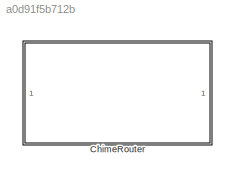
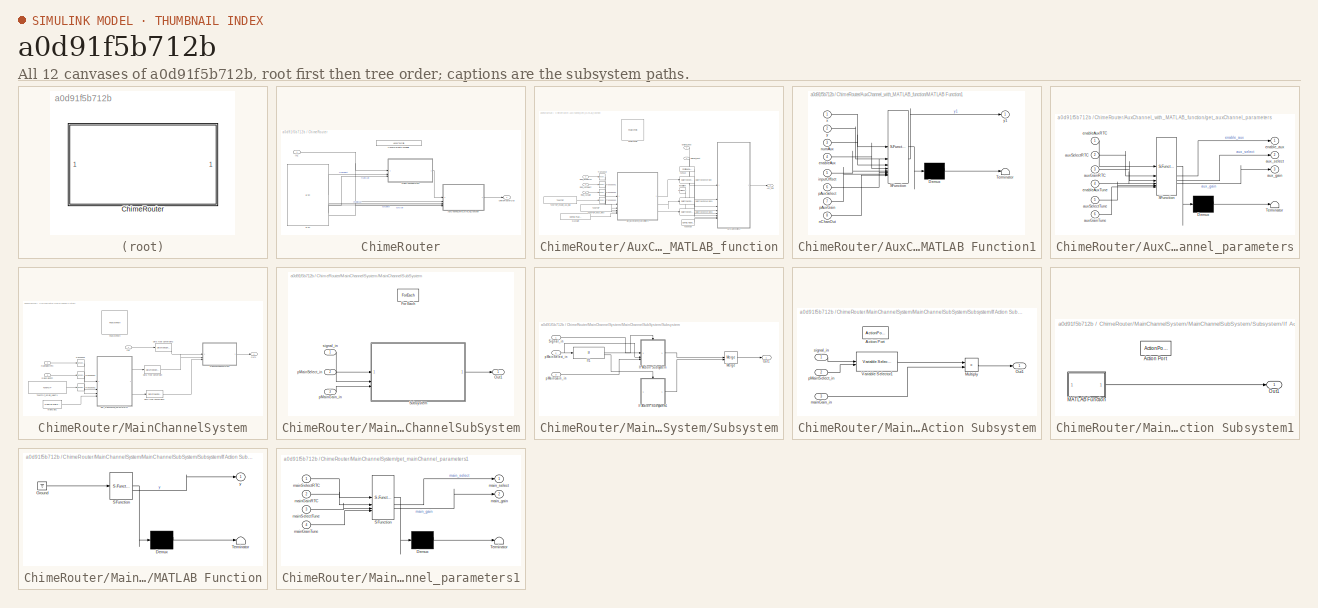
[diagram: thumbnail index - all 12 canvases of the model, root first then tree order]
MODEL slx_a0d91f5b712b
KIND library
CONFIG AbsTol = auto
CONFIG EnableMultiTasking = off
CONFIG FixedStep = auto
CONFIG MaxStep = auto
CONFIG MinStep = auto
CONFIG RelTol = 1e-3
CONFIG SampleTimeConstraint = Unconstrained
CONFIG SolverName = VariableStepAuto
CONFIG StartTime = 0.0
CONFIG StopTime = 10.0
BLOCK [SubSystem] ChimeRouter
BLOCK [SubSystem] ChimeRouter/AuxChannel_with_MATLAB_function
BLOCK [Outport] ChimeRouter/AuxChannel_with_MATLAB_function/Aux_Out1
  PortDimensions = [Config.FrameSize Config.NChanOut]
  VarSizeSig = No
  VectorParamsAs1DForOutWhenUnconnected = off
BLOCK [DataTypeConversion] ChimeRouter/AuxChannel_with_MATLAB_function/Data Type Conversion
  OutDataTypeStr = int32
  RndMeth = Floor
  SaturateOnIntegerOverflow = off
BLOCK [DataTypeConversion] ChimeRouter/AuxChannel_with_MATLAB_function/Data Type Conversion1
  OutDataTypeStr = int32
  RndMeth = Floor
  SaturateOnIntegerOverflow = off
BLOCK [DataTypeConversion] ChimeRouter/AuxChannel_with_MATLAB_function/Data Type Conversion2
  OutDataTypeStr = single
  RndMeth = Floor
  SaturateOnIntegerOverflow = off
BLOCK [Reference] ChimeRouter/AuxChannel_with_MATLAB_function/FeaturePath  REF=FeaturePath/FeaturePath
  SourceBlock = FeaturePath/FeaturePath
  SourceProductName = Bose Talaria
  SourceType = Talaria Feature Path
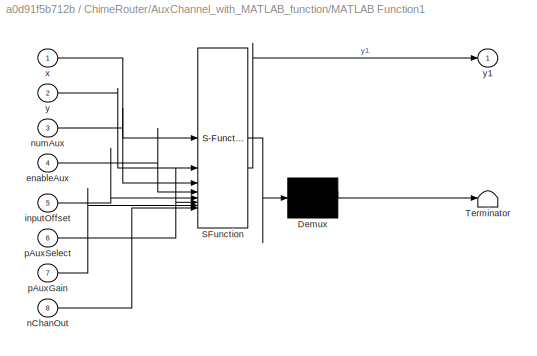
BLOCK [SubSystem] ChimeRouter/AuxChannel_with_MATLAB_function/MATLAB Function1
  ErrorFcn = Stateflow.Translate.translate
  PermitHierarchicalResolution = ExplicitOnly
  SFBlockType = MATLAB Function
  TreatAsAtomicUnit = on
BLOCK [Demux] ChimeRouter/AuxChannel_with_MATLAB_function/MATLAB Function1/ Demux 
  Outputs = 1
BLOCK [S-Function] ChimeRouter/AuxChannel_with_MATLAB_function/MATLAB Function1/ SFunction 
  EnableBusSupport = off
  FunctionName = sf_sfun
  PortCounts = [8 2]
  SFcnIsStateOwnerBlock = off
  SFunctionDeploymentMode = off
  Tag = Stateflow S-Function 1
BLOCK [Terminator] ChimeRouter/AuxChannel_with_MATLAB_function/MATLAB Function1/ Terminator 
BLOCK [Inport] ChimeRouter/AuxChannel_with_MATLAB_function/MATLAB Function1/enableAux
  Port = 4
BLOCK [Inport] ChimeRouter/AuxChannel_with_MATLAB_function/MATLAB Function1/inputOffset
  Port = 5
BLOCK [Inport] ChimeRouter/AuxChannel_with_MATLAB_function/MATLAB Function1/nChanOut
  Port = 8
BLOCK [Inport] ChimeRouter/AuxChannel_with_MATLAB_function/MATLAB Function1/numAux
  Port = 3
BLOCK [Inport] ChimeRouter/AuxChannel_with_MATLAB_function/MATLAB Function1/pAuxGain
  Port = 7
BLOCK [Inport] ChimeRouter/AuxChannel_with_MATLAB_function/MATLAB Function1/pAuxSelect
  Port = 6
BLOCK [Inport] ChimeRouter/AuxChannel_with_MATLAB_function/MATLAB Function1/x
BLOCK [Inport] ChimeRouter/AuxChannel_with_MATLAB_function/MATLAB Function1/y
  Port = 2
BLOCK [Outport] ChimeRouter/AuxChannel_with_MATLAB_function/MATLAB Function1/y1
  VectorParamsAs1DForOutWhenUnconnected = off
BLOCK [Inport] ChimeRouter/AuxChannel_with_MATLAB_function/MainOut_Input
  PortDimensions = [Config.FrameSize Config.NChanOut]
  VarSizeSig = No
BLOCK [Inport] ChimeRouter/AuxChannel_with_MATLAB_function/Original_Input
  Port = 2
BLOCK [Inport] ChimeRouter/AuxChannel_with_MATLAB_function/REQ_AuxGain
  Port = 5
BLOCK [Inport] ChimeRouter/AuxChannel_with_MATLAB_function/REQ_AuxSelect
  Port = 4
BLOCK [Inport] ChimeRouter/AuxChannel_with_MATLAB_function/REQ_EnableAux
  Port = 3
BLOCK [Math] ChimeRouter/AuxChannel_with_MATLAB_function/Transpose
  Operator = transpose
  SignedPower = on
BLOCK [Math] ChimeRouter/AuxChannel_with_MATLAB_function/Transpose1
  Operator = transpose
  SignedPower = on
BLOCK [Math] ChimeRouter/AuxChannel_with_MATLAB_function/Transpose2
  Operator = transpose
  SignedPower = on
BLOCK [Math] ChimeRouter/AuxChannel_with_MATLAB_function/Transpose3
  Operator = transpose
  SignedPower = on
BLOCK [Reference] ChimeRouter/AuxChannel_with_MATLAB_function/TuneTOP_enable_aux_flag  REF=TuneVar/TuneTOP
  SourceBlock = TuneVar/TuneTOP
  SourceProductName = Bose Talaria
  SourceType = Talaria Trivial Tune TOP
BLOCK [Reference] ChimeRouter/AuxChannel_with_MATLAB_function/TuneTOP_paux_elect  REF=TuneVar/TuneTOP
  SourceBlock = TuneVar/TuneTOP
  SourceProductName = Bose Talaria
  SourceType = Talaria Trivial Tune TOP
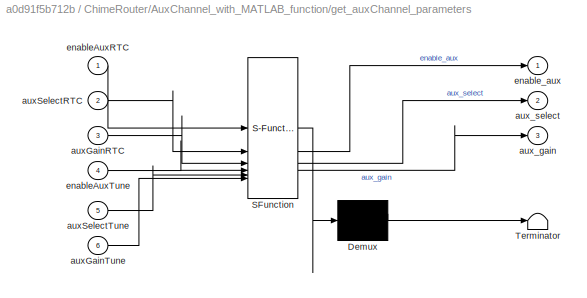
BLOCK [SubSystem] ChimeRouter/AuxChannel_with_MATLAB_function/get_auxChannel_parameters
  ErrorFcn = Stateflow.Translate.translate
  PermitHierarchicalResolution = ExplicitOnly
  SFBlockType = MATLAB Function
  TreatAsAtomicUnit = on
BLOCK [Demux] ChimeRouter/AuxChannel_with_MATLAB_function/get_auxChannel_parameters/ Demux 
  Outputs = 1
BLOCK [S-Function] ChimeRouter/AuxChannel_with_MATLAB_function/get_auxChannel_parameters/ SFunction 
  EnableBusSupport = off
  FunctionName = sf_sfun
  PortCounts = [6 4]
  SFcnIsStateOwnerBlock = off
  SFunctionDeploymentMode = off
  Tag = Stateflow S-Function 2
BLOCK [Terminator] ChimeRouter/AuxChannel_with_MATLAB_function/get_auxChannel_parameters/ Terminator 
BLOCK [Inport] ChimeRouter/AuxChannel_with_MATLAB_function/get_auxChannel_parameters/auxGainRTC
  Port = 3
BLOCK [Inport] ChimeRouter/AuxChannel_with_MATLAB_function/get_auxChannel_parameters/auxGainTune
  Port = 6
BLOCK [Inport] ChimeRouter/AuxChannel_with_MATLAB_function/get_auxChannel_parameters/auxSelectRTC
  Port = 2
BLOCK [Inport] ChimeRouter/AuxChannel_with_MATLAB_function/get_auxChannel_parameters/auxSelectTune
  Port = 5
BLOCK [Outport] ChimeRouter/AuxChannel_with_MATLAB_function/get_auxChannel_parameters/aux_gain
  Port = 3
  VectorParamsAs1DForOutWhenUnconnected = off
BLOCK [Outport] ChimeRouter/AuxChannel_with_MATLAB_function/get_auxChannel_parameters/aux_select
  Port = 2
  VectorParamsAs1DForOutWhenUnconnected = off
BLOCK [Inport] ChimeRouter/AuxChannel_with_MATLAB_function/get_auxChannel_parameters/enableAuxRTC
BLOCK [Inport] ChimeRouter/AuxChannel_with_MATLAB_function/get_auxChannel_parameters/enableAuxTune
  Port = 4
BLOCK [Outport] ChimeRouter/AuxChannel_with_MATLAB_function/get_auxChannel_parameters/enable_aux
  VectorParamsAs1DForOutWhenUnconnected = off
BLOCK [Constant] ChimeRouter/AuxChannel_with_MATLAB_function/inputOffset
  OutDataTypeStr = int32
  Value = Config.InputOffset
BLOCK [Constant] ChimeRouter/AuxChannel_with_MATLAB_function/nChanOut
  OutDataTypeStr = int32
  Value = Config.NChanOut
BLOCK [Constant] ChimeRouter/AuxChannel_with_MATLAB_function/numAux
  OutDataTypeStr = int32
  Value = Config.NumAux
BLOCK [Constant] ChimeRouter/AuxChannel_with_MATLAB_function/pAuxGain
  OutDataTypeStr = single
  Value = Config.PAuxGain
  VectorParams1D = off
BLOCK [Reference] ChimeRouter/HandyDefaultConfigFile  REF=HandyTextFile/HandyTextFile
  SourceBlock = HandyTextFile/HandyTextFile
  SourceProductName = Bose Talaria
  SourceType = Talaria Handy Text File
BLOCK [Inport] ChimeRouter/In1
BLOCK [SubSystem] ChimeRouter/MainChannelSystem
BLOCK [DataTypeConversion] ChimeRouter/MainChannelSystem/Data Type Conversion
  OutDataTypeStr = single
  RndMeth = Floor
  SaturateOnIntegerOverflow = off
BLOCK [DataTypeConversion] ChimeRouter/MainChannelSystem/Data Type Conversion1
  OutDataTypeStr = single
  RndMeth = Floor
  SaturateOnIntegerOverflow = off
BLOCK [DataTypeConversion] ChimeRouter/MainChannelSystem/Data Type Conversion2
  OutDataTypeStr = single
  RndMeth = Floor
  SaturateOnIntegerOverflow = off
BLOCK [Reference] ChimeRouter/MainChannelSystem/FeaturePath  REF=FeaturePath/FeaturePath
  SourceBlock = FeaturePath/FeaturePath
  SourceProductName = Bose Talaria
  SourceType = Talaria Feature Path
BLOCK [Inport] ChimeRouter/MainChannelSystem/In1
BLOCK [SubSystem] ChimeRouter/MainChannelSystem/MainChannelSubSystem
  TreatAsAtomicUnit = on
BLOCK [ForEach] ChimeRouter/MainChannelSystem/MainChannelSubSystem/For Each
  DisableCoverage = on
BLOCK [Outport] ChimeRouter/MainChannelSystem/MainChannelSubSystem/Out1
  ConcatenationDimension = 2
  VectorParamsAs1DForOutWhenUnconnected = off
BLOCK [SubSystem] ChimeRouter/MainChannelSystem/MainChannelSubSystem/Subsystem
BLOCK [SubSystem] ChimeRouter/MainChannelSystem/MainChannelSubSystem/Subsystem/If Action Subsystem
  TreatAsAtomicUnit = on
BLOCK [ActionPort] ChimeRouter/MainChannelSystem/MainChannelSubSystem/Subsystem/If Action Subsystem/Action Port
BLOCK [Product] ChimeRouter/MainChannelSystem/MainChannelSubSystem/Subsystem/If Action Subsystem/Multiply
BLOCK [Outport] ChimeRouter/MainChannelSystem/MainChannelSubSystem/Subsystem/If Action Subsystem/Out1
  VectorParamsAs1DForOutWhenUnconnected = off
BLOCK [Reference] ChimeRouter/MainChannelSystem/MainChannelSubSystem/Subsystem/If Action Subsystem/Variable Selector1  REF=dspindex/Variable
Selector
  SourceBlock = dspindex/Variable\nSelector
  SourceType = Variable Selector
BLOCK [Inport] ChimeRouter/MainChannelSystem/MainChannelSubSystem/Subsystem/If Action Subsystem/mainGain_in
  Port = 3
BLOCK [Inport] ChimeRouter/MainChannelSystem/MainChannelSubSystem/Subsystem/If Action Subsystem/pMainSelect_in
  Port = 2
BLOCK [Inport] ChimeRouter/MainChannelSystem/MainChannelSubSystem/Subsystem/If Action Subsystem/signal_in
BLOCK [SubSystem] ChimeRouter/MainChannelSystem/MainChannelSubSystem/Subsystem/If Action Subsystem1
  TreatAsAtomicUnit = on
BLOCK [ActionPort] ChimeRouter/MainChannelSystem/MainChannelSubSystem/Subsystem/If Action Subsystem1/Action Port
BLOCK [SubSystem] ChimeRouter/MainChannelSystem/MainChannelSubSystem/Subsystem/If Action Subsystem1/MATLAB Function
  ErrorFcn = Stateflow.Translate.translate
  PermitHierarchicalResolution = ExplicitOnly
  SFBlockType = MATLAB Function
  TreatAsAtomicUnit = on
BLOCK [Demux] ChimeRouter/MainChannelSystem/MainChannelSubSystem/Subsystem/If Action Subsystem1/MATLAB Function/ Demux 
  Outputs = 1
BLOCK [Ground] ChimeRouter/MainChannelSystem/MainChannelSubSystem/Subsystem/If Action Subsystem1/MATLAB Function/ Ground 
BLOCK [S-Function] ChimeRouter/MainChannelSystem/MainChannelSubSystem/Subsystem/If Action Subsystem1/MATLAB Function/ SFunction 
  EnableBusSupport = off
  FunctionName = sf_sfun
  Parameters = L
  PortCounts = [1 2]
  SFcnIsStateOwnerBlock = off
  SFunctionDeploymentMode = off
  Tag = Stateflow S-Function 4
BLOCK [Terminator] ChimeRouter/MainChannelSystem/MainChannelSubSystem/Subsystem/If Action Subsystem1/MATLAB Function/ Terminator 
BLOCK [Outport] ChimeRouter/MainChannelSystem/MainChannelSubSystem/Subsystem/If Action Subsystem1/MATLAB Function/y
BLOCK [Outport] ChimeRouter/MainChannelSystem/MainChannelSubSystem/Subsystem/If Action Subsystem1/Out1
  VectorParamsAs1DForOutWhenUnconnected = off
BLOCK [If] ChimeRouter/MainChannelSystem/MainChannelSubSystem/Subsystem/If1
  IfExpression = u1 >0
BLOCK [Merge] ChimeRouter/MainChannelSystem/MainChannelSubSystem/Subsystem/Merge
BLOCK [Outport] ChimeRouter/MainChannelSystem/MainChannelSubSystem/Subsystem/Out1
  VectorParamsAs1DForOutWhenUnconnected = off
BLOCK [Inport] ChimeRouter/MainChannelSystem/MainChannelSubSystem/Subsystem/Signal_in
BLOCK [Inport] ChimeRouter/MainChannelSystem/MainChannelSubSystem/Subsystem/pMainGain_in
  Port = 3
BLOCK [Inport] ChimeRouter/MainChannelSystem/MainChannelSubSystem/Subsystem/pMainSelect_in
  Port = 2
BLOCK [Inport] ChimeRouter/MainChannelSystem/MainChannelSubSystem/pMainGain_in
  Partition = on
  PartitionDimension = 2
  PartitionOffset = 0
  PartitionWidth = 1
  Port = 3
BLOCK [Inport] ChimeRouter/MainChannelSystem/MainChannelSubSystem/pMainSelect_in
  Partition = on
  PartitionDimension = 2
  PartitionOffset = 0
  PartitionWidth = 1
  Port = 2
BLOCK [Inport] ChimeRouter/MainChannelSystem/MainChannelSubSystem/signal_in
BLOCK [Constant] ChimeRouter/MainChannelSystem/MainGain1
  OutDataTypeStr = single
  Value = Config.MainGain
  VectorParams1D = off
BLOCK [Outport] ChimeRouter/MainChannelSystem/Out1
  PortDimensions = [Config.FrameSize Config.NChanOut]
  VarSizeSig = No
  VectorParamsAs1DForOutWhenUnconnected = off
BLOCK [Math] ChimeRouter/MainChannelSystem/Transpose
  Operator = transpose
  SignedPower = on
BLOCK [Math] ChimeRouter/MainChannelSystem/Transpose1
  Operator = transpose
  SignedPower = on
BLOCK [Math] ChimeRouter/MainChannelSystem/Transpose2
  Operator = transpose
  SignedPower = on
BLOCK [Reference] ChimeRouter/MainChannelSystem/TuneTOP_pmain_select1  REF=TuneVar/TuneTOP
  SourceBlock = TuneVar/TuneTOP
  SourceProductName = Bose Talaria
  SourceType = Talaria Trivial Tune TOP
BLOCK [SubSystem] ChimeRouter/MainChannelSystem/get_mainChannel_parameters1
  ErrorFcn = Stateflow.Translate.translate
  PermitHierarchicalResolution = ExplicitOnly
  SFBlockType = MATLAB Function
  TreatAsAtomicUnit = on
BLOCK [Demux] ChimeRouter/MainChannelSystem/get_mainChannel_parameters1/ Demux 
  Outputs = 1
BLOCK [S-Function] ChimeRouter/MainChannelSystem/get_mainChannel_parameters1/ SFunction 
  EnableBusSupport = off
  FunctionName = sf_sfun
  PortCounts = [4 3]
  SFcnIsStateOwnerBlock = off
  SFunctionDeploymentMode = off
  Tag = Stateflow S-Function 3
BLOCK [Terminator] ChimeRouter/MainChannelSystem/get_mainChannel_parameters1/ Terminator 
BLOCK [Inport] ChimeRouter/MainChannelSystem/get_mainChannel_parameters1/mainGainRTC
  Port = 2
BLOCK [Inport] ChimeRouter/MainChannelSystem/get_mainChannel_parameters1/mainGainTune
  Port = 4
BLOCK [Inport] ChimeRouter/MainChannelSystem/get_mainChannel_parameters1/mainSelectRTC
BLOCK [Inport] ChimeRouter/MainChannelSystem/get_mainChannel_parameters1/mainSelectTune
  Port = 3
BLOCK [Outport] ChimeRouter/MainChannelSystem/get_mainChannel_parameters1/main_gain
  Port = 2
  VectorParamsAs1DForOutWhenUnconnected = off
BLOCK [Outport] ChimeRouter/MainChannelSystem/get_mainChannel_parameters1/main_select
  VectorParamsAs1DForOutWhenUnconnected = off
BLOCK [Inport] ChimeRouter/MainChannelSystem/mainGainRTC
  Port = 3
BLOCK [Inport] ChimeRouter/MainChannelSystem/mainSelectRTC
  Port = 2
BLOCK [Reference] ChimeRouter/RTC  REF=RTC/RTC
  SourceBlock = RTC/RTC
  SourceProductName = Bose Talaria
  SourceType = Talaria RTC Receive
BLOCK [Outport] ChimeRouter/chimeRouterOut
  VectorParamsAs1DForOutWhenUnconnected = off
CHART ChimeRouter/AuxChannel_with_MATLAB_function/MATLAB Function1 states=1 transitions=1
  STATE_LABEL 'eML_blk_kernel()'
  STATE_LABEL 'SCRIPT:\nfunction y1 = fcn(x, y, numAux, enableAux, inputOffset, pAuxSelect, pAuxGain, nChanOut)\n%tempSelect=zeros(1,nChanOut*length(numAux));\n%tempGain=ones(1,nChanOut*length(numAux));\nfor i=1:length(numAux)\n   if(enableAux(i))\n     tempSelect = inputOffset + pAuxSelect((i-1)*nChanOut+1:i*nChanOut);   %Account for Matlab 1 index\n     tempGain = pAuxGain((i-1)*nChanOut+1:i*nChanOut);   %Account for...<+229ch>'
CHART ChimeRouter/AuxChannel_with_MATLAB_function/get_auxChannel_parameters states=1 transitions=1
  STATE_LABEL 'eML_blk_kernel()'
  STATE_LABEL 'SCRIPT:\nfunction [enable_aux, aux_select, aux_gain] = get_auxChannel_parameters(...\n    enableAuxRTC, auxSelectRTC, auxGainRTC,... % RTC message parameters\n    enableAuxTune,auxSelectTune, auxGainTune) % Tune parameters\n\n    Numiters=length(auxSelectRTC);\n    aux_select=zeros(1,Numiters);\n    aux_gain=zeros(1,Numiters);    \n    enable_aux=zeros(size(enableAuxRTC));  \n    enable_aux = double(enable...<+567ch>'
CHART ChimeRouter/MainChannelSystem/get_mainChannel_parameters1 states=1 transitions=1
  STATE_LABEL 'eML_blk_kernel()'
  STATE_LABEL 'SCRIPT:\nfunction [main_select, main_gain] = get_mainChannel_parameters(...\n    mainSelectRTC, mainGainRTC,... % RTC message parameters\n    mainSelectTune, mainGainTune) % Tune parameters\n\n    % initialize to zeros\n    Numiters=length(mainSelectRTC);\n    main_select=zeros(1,Numiters);\n    main_gain=zeros(1,Numiters);\n    \n    % convert data type\n    main_select = double(mainSelectTune);\n    main_ga...<+313ch>'
CHART ChimeRouter/MainChannelSystem/MainChannelSubSystem/Subsystem/If Action
Subsystem1/MATLAB Function states=1 transitions=1
  STATE_LABEL 'eML_blk_kernel()'
  STATE_LABEL 'SCRIPT:\nfunction y = fcn(L)\n% zeros\ny = zeros(L,1);\n'
CHART  states=0 transitions=0
CHART  states=0 transitions=0
CHART  states=0 transitions=0
CHART  states=0 transitions=0
